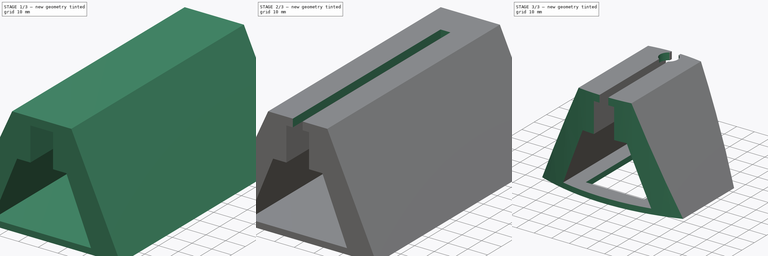
[diagram: build sequence overview — one tinted view per stage of 3, left to right]
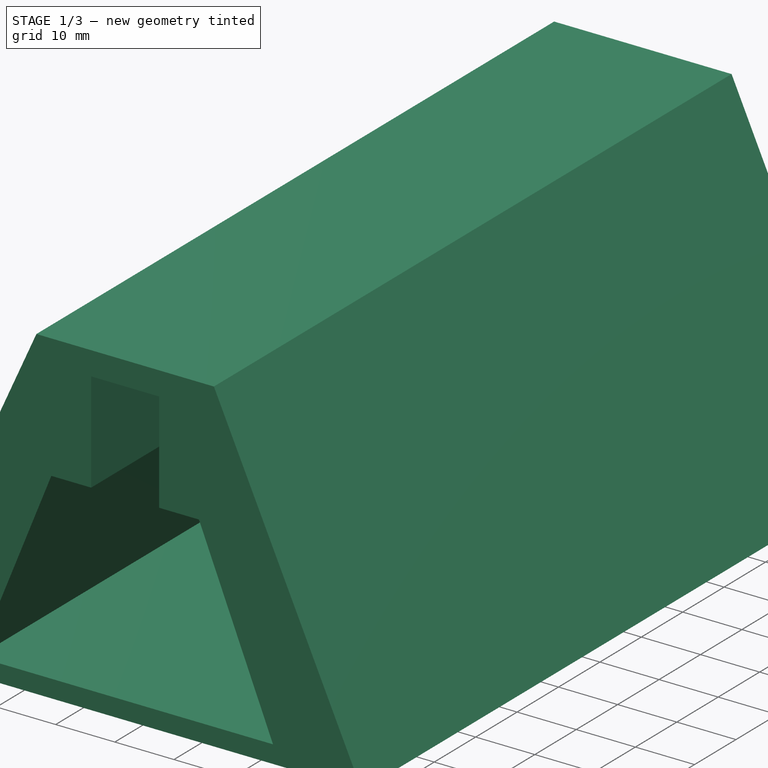
[diagram: stage 1 of 3 — iso view after this stage's code; geometry added in this stage tinted green]
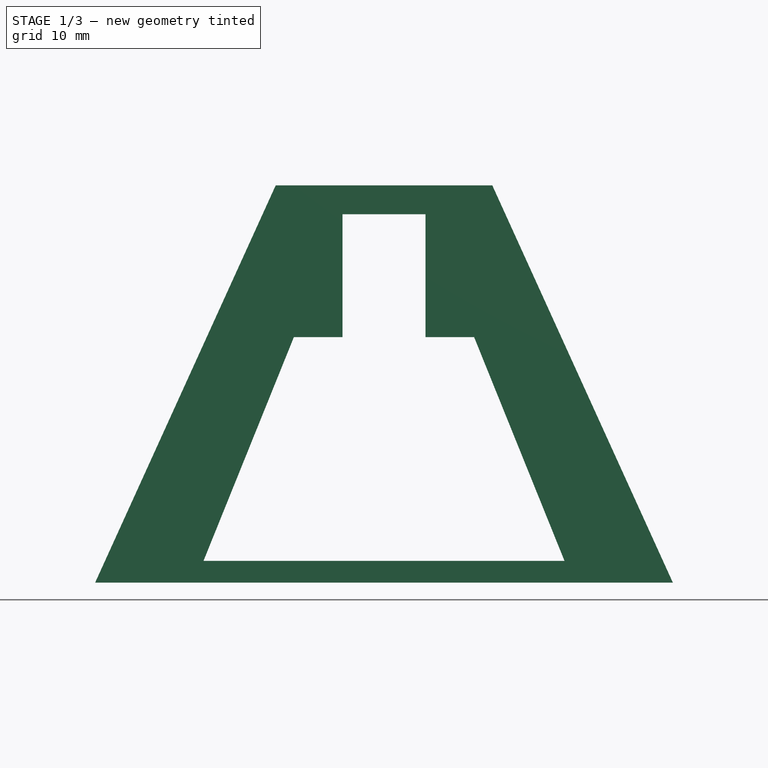
[diagram: stage 1 of 3 — front view after this stage's code; geometry added in this stage tinted green]
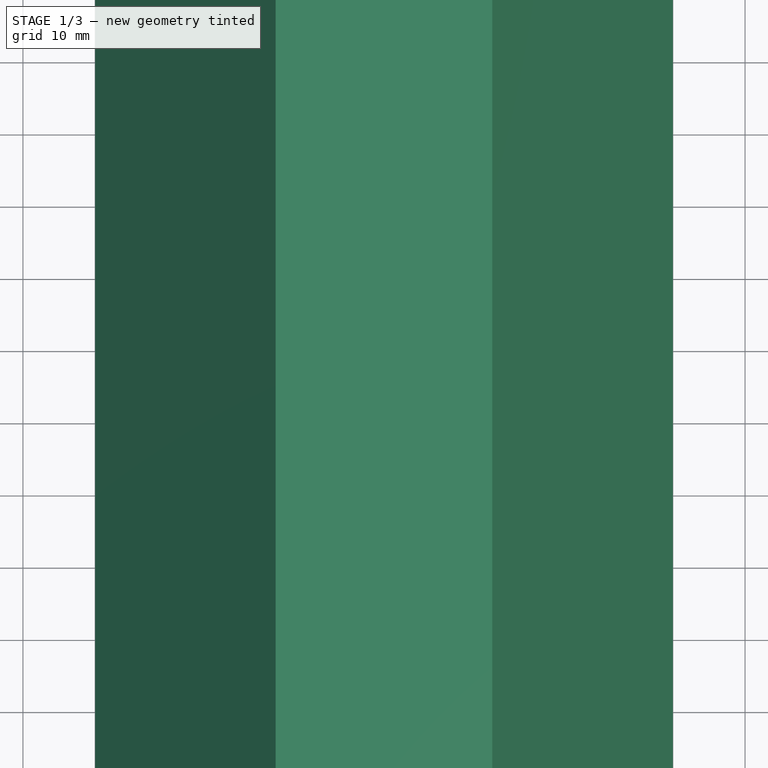
[diagram: stage 1 of 3 — top view after this stage's code; geometry added in this stage tinted green]
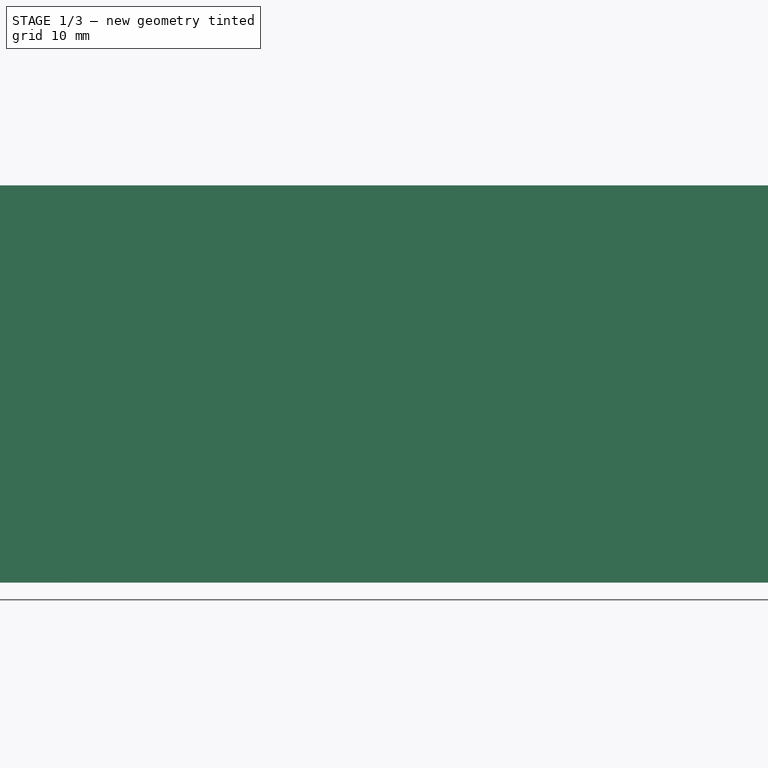
[diagram: stage 1 of 3 — right view after this stage's code; geometry added in this stage tinted green]
FCSTD DOCUMENT  (FreeCAD 0.19R)
Label: ChargerHolder2
License: All rights reserved
LicenseURL: http://en.wikipedia.org/wiki/All_rights_reserved
objects: Sketcher::SketchObject×9, PartDesign::Pocket×7, PartDesign::Pad×1, PartDesign::Body×1
note: 26 computed .brp shape members not serialized (recipe doc carries the construction recipe); baked Part::Feature solids carry a one-line shape summary decoded from their .brp

FEATURE [Sketcher::SketchObject] Sketch001
  FullyConstrained = true
  MapMode = 5
  Placement = pos=(0,-62.5,0) rot=(1,0,0;1.5708rad)
  sketch-geometry (4):
    g0: LineSegment StartX=-40 StartY=0 StartZ=0 EndX=-15 EndY=55 EndZ=0
    g1: LineSegment StartX=-15 StartY=55 StartZ=0 EndX=15 EndY=55 EndZ=0
    g2: LineSegment StartX=15 StartY=55 StartZ=0 EndX=40 EndY=0 EndZ=0
    g3: LineSegment StartX=40 StartY=0 StartZ=0 EndX=-40 EndY=0 EndZ=0
  constraints (10):
    c: PointOnObject(g0,g-1)
    c: Coincident(g0,g1)
    c: Coincident(g1,g2)
    c: Coincident(g2,g3)
    c: Coincident(g3,g0)
    c: Symmetric(g2,g0,g-2)
    c: Distance(g3) = 80
    c: Symmetric(g1,g0,g-2)
    c: Distance(g1) = 30
    c: DistanceY(g1) = 55
FEATURE [PartDesign::Pad] Pad
  Direction = (1,1,1)
  Length = 125
  Length2 = 100
  Placement = pos=(0,-62.5,0) rot=(1,0,0;1.5708rad)
  Profile = -> Sketch001
  Type = 0
FEATURE [Sketcher::SketchObject] Sketch
  FullyConstrained = false
  MapMode = 5
  Placement = pos=(0,-187.5,4.62e-14) rot=(1,0,0;1.5708rad)
  Support = -> [Pad]
  sketch-geometry (4):
    g0: LineSegment StartX=-12.4784 StartY=34 StartZ=0 EndX=12.4784 EndY=34 EndZ=0
    g1: LineSegment StartX=12.4784 StartY=34 StartZ=0 EndX=25 EndY=3 EndZ=0
    g2: LineSegment StartX=25 StartY=3 StartZ=0 EndX=-25 EndY=3 EndZ=0
    g3: LineSegment StartX=-25 StartY=3 StartZ=0 EndX=-12.4784 EndY=34 EndZ=0
  constraints (9):
    c: Coincident(g0,g1)
    c: Coincident(g1,g2)
    c: Coincident(g2,g3)
    c: Coincident(g3,g0)
    c: Symmetric(g1,g2,g-2)
    c: Symmetric(g0,g0,g-2)
    c: DistanceY(g1) = 3
    c: Distance(g2) = 50
    c: DistanceY(g1,g0) = 31
FEATURE [PartDesign::Pocket] Pocket
  BaseFeature = -> Pad
  Length = 5
  Length2 = 100
  Placement = pos=(0,-62.5,0) rot=(1,0,0;1.5708rad)
  Profile = -> Sketch
  Type = 1
FEATURE [Sketcher::SketchObject] Sketch002
  FullyConstrained = false
  MapMode = 5
  Placement = pos=(0,-187.5,6.01e-14) rot=(1,0,0;1.5708rad)
  Support = -> [Pocket]
  sketch-geometry (4):
    g0: LineSegment StartX=-5.75 StartY=51 StartZ=0 EndX=5.75 EndY=51 EndZ=0
    g1: LineSegment StartX=5.75 StartY=51 StartZ=0 EndX=5.75 EndY=26.4213 EndZ=0
    g2: LineSegment StartX=5.75 StartY=26.4213 StartZ=0 EndX=-5.75 EndY=26.4213 EndZ=0
    g3: LineSegment StartX=-5.75 StartY=26.4213 StartZ=0 EndX=-5.75 EndY=51 EndZ=0
  constraints (10):
    c: Coincident(g0,g1)
    c: Coincident(g1,g2)
    c: Coincident(g2,g3)
    c: Coincident(g3,g0)
    c: Horizontal(g0)
    c: Vertical(g1)
    c: Vertical(g3)
    c: Symmetric(g1,g2,g-2)
    c: DistanceY(g0) = 51
    c: Distance(g2) = 11.5
FEATURE [PartDesign::Pocket] Pocket001
  BaseFeature = -> Pocket
  Length = 5
  Length2 = 100
  Placement = pos=(0,-62.5,0) rot=(1,0,0;1.5708rad)
  Profile = -> Sketch002
  Type = 1
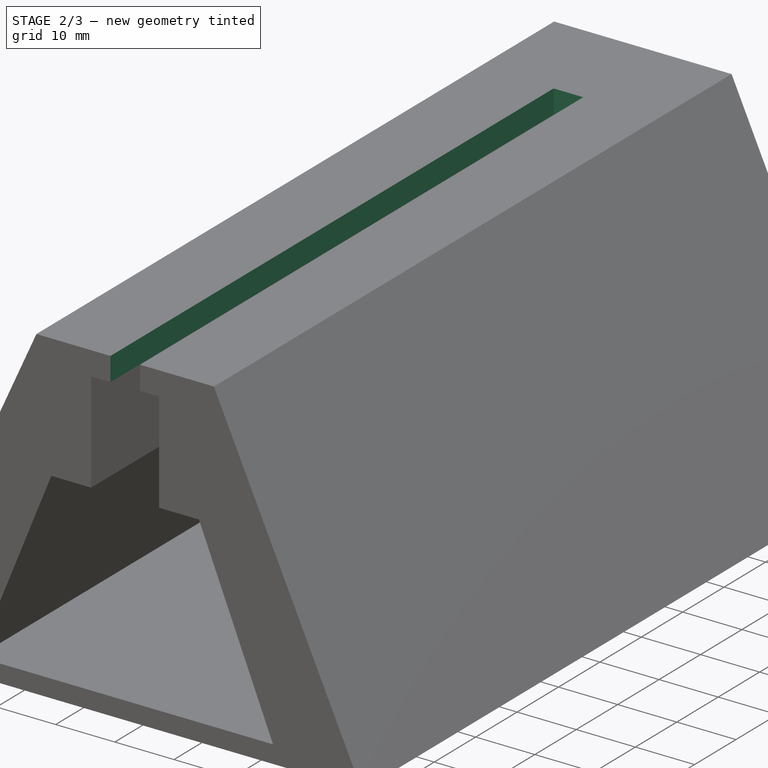
[diagram: stage 2 of 3 — iso view after this stage's code; geometry added in this stage tinted green]
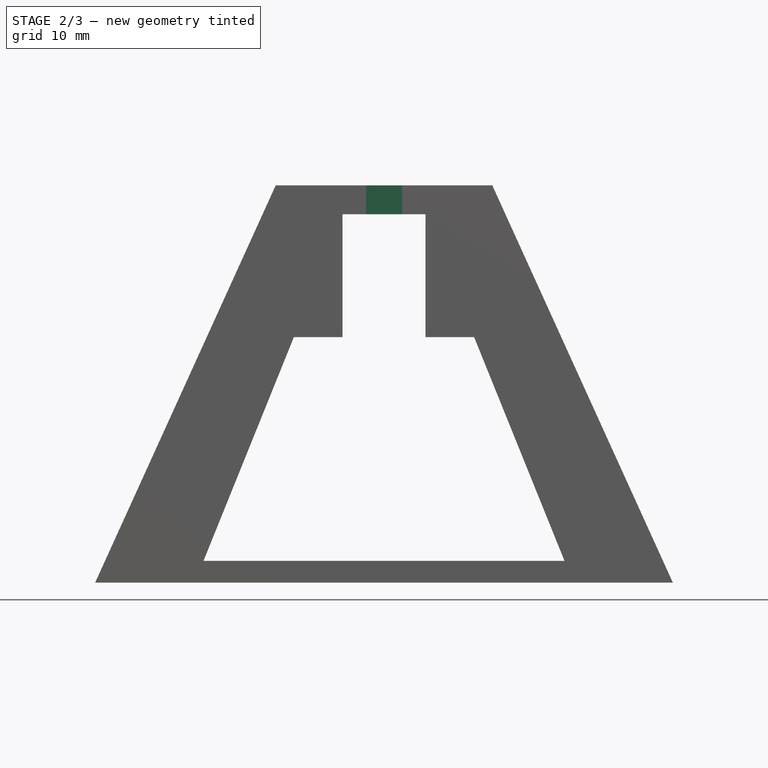
[diagram: stage 2 of 3 — front view after this stage's code; geometry added in this stage tinted green]
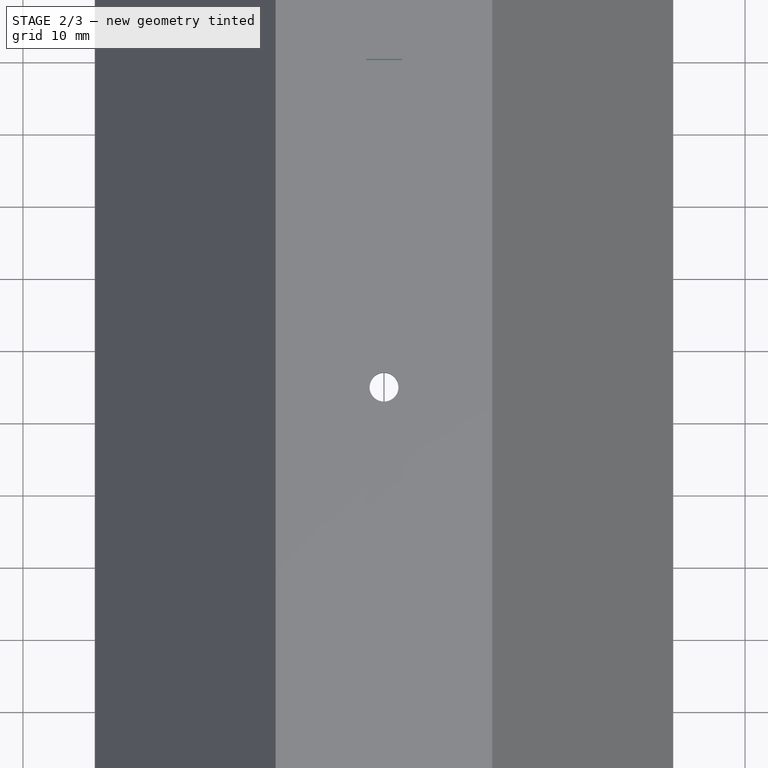
[diagram: stage 2 of 3 — top view after this stage's code; geometry added in this stage tinted green]
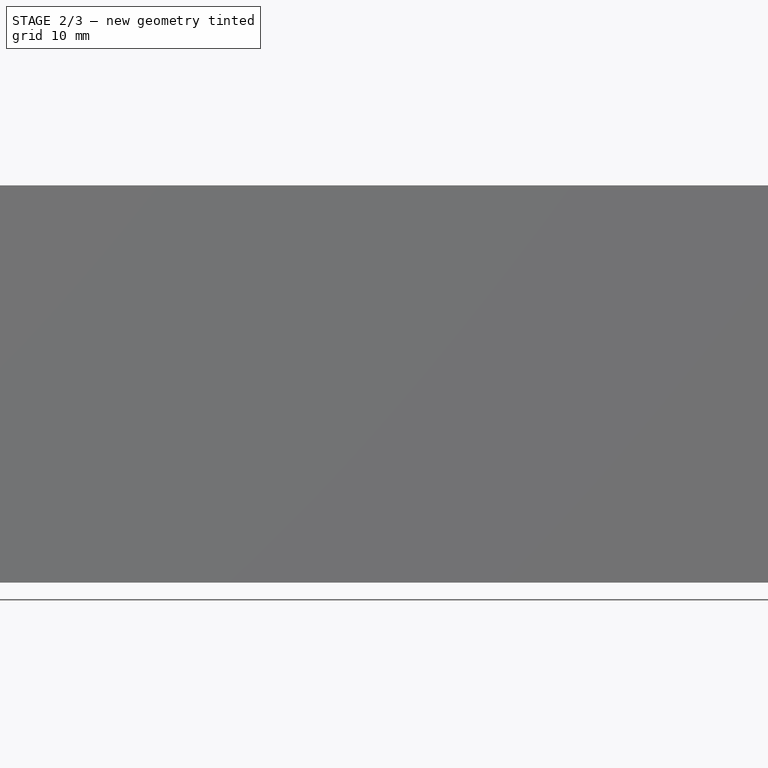
[diagram: stage 2 of 3 — right view after this stage's code; geometry added in this stage tinted green]
FEATURE [Sketcher::SketchObject] Sketch003
  FullyConstrained = false
  MapMode = 5
  Placement = pos=(0,-187.5,7.39e-14) rot=(1,0,0;1.5708rad)
  Support = -> [Pocket001]
  sketch-geometry (4):
    g0: LineSegment StartX=-2.48159 StartY=76.2642 StartZ=0 EndX=2.51841 EndY=76.2642 EndZ=0
    g1: LineSegment StartX=2.51841 StartY=76.2642 StartZ=0 EndX=2.51841 EndY=44.212 EndZ=0
    g2: LineSegment StartX=2.51841 StartY=44.212 StartZ=0 EndX=-2.48159 EndY=44.212 EndZ=0
    g3: LineSegment StartX=-2.48159 StartY=44.212 StartZ=0 EndX=-2.48159 EndY=76.2642 EndZ=0
  constraints (9):
    c: Coincident(g0,g1)
    c: Coincident(g1,g2)
    c: Coincident(g2,g3)
    c: Coincident(g3,g0)
    c: Horizontal(g0)
    c: Horizontal(g2)
    c: Vertical(g1)
    c: Vertical(g3)
    c: Distance(g0) = 5
FEATURE [PartDesign::Pocket] Pocket002
  BaseFeature = -> Pocket001
  Length = 107
  Length2 = 100
  Placement = pos=(0,-62.5,0) rot=(1,0,0;1.5708rad)
  Profile = -> Sketch003
  Type = 0
FEATURE [Sketcher::SketchObject] Sketch004
  FullyConstrained = true
  MapMode = 5
  Placement = pos=(0,-62.5,0) rot=(1,0,0;3.14159rad)
  Support = -> [Pocket002]
  sketch-geometry (1):
    g0: Circle CenterX=0 CenterY=62.5 CenterZ=0 NormalX=0 NormalY=0 NormalZ=1 AngleXU=0 Radius=2
  constraints (3):
    c: Radius(g0) = 2
    c: PointOnObject(g0,g-2)
    c: DistanceY(g0) = 62.5
FEATURE [PartDesign::Pocket] Pocket003
  BaseFeature = -> Pocket002
  Length = 5
  Length2 = 100
  Placement = pos=(0,-62.5,0) rot=(1,0,0;1.5708rad)
  Profile = -> Sketch004
  Type = 0
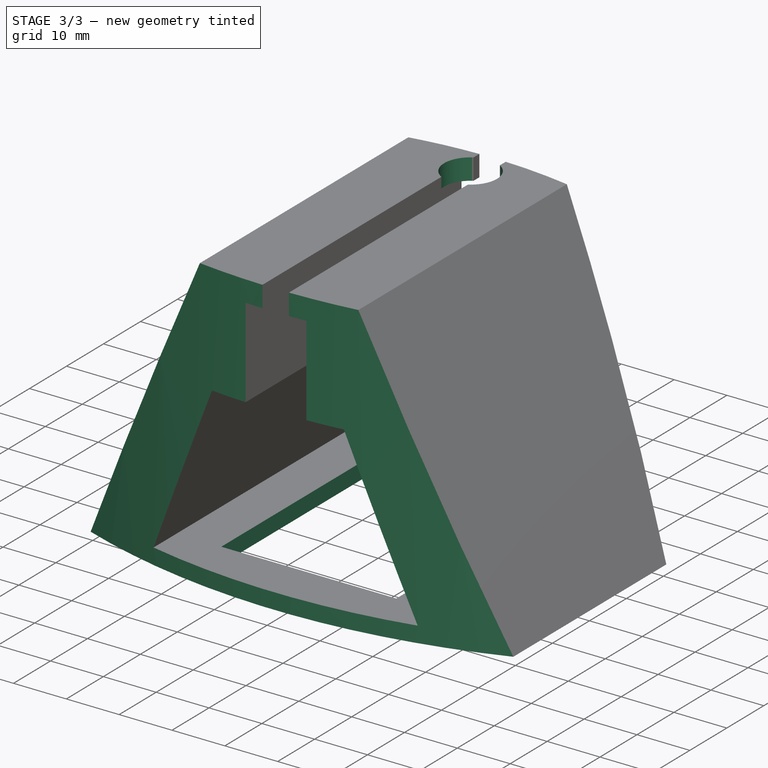
[diagram: stage 3 of 3 — iso view after this stage's code; geometry added in this stage tinted green]
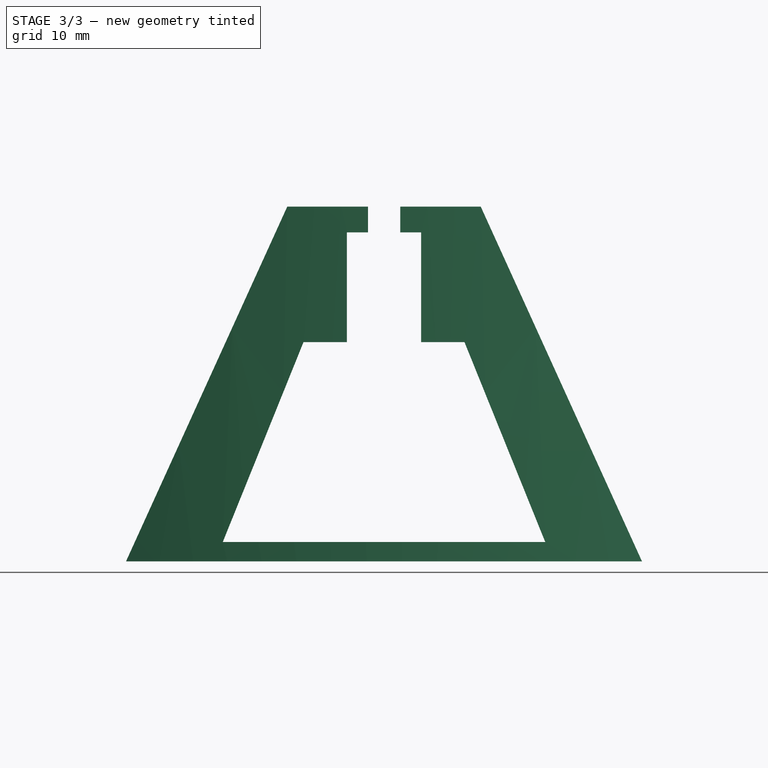
[diagram: stage 3 of 3 — front view after this stage's code; geometry added in this stage tinted green]
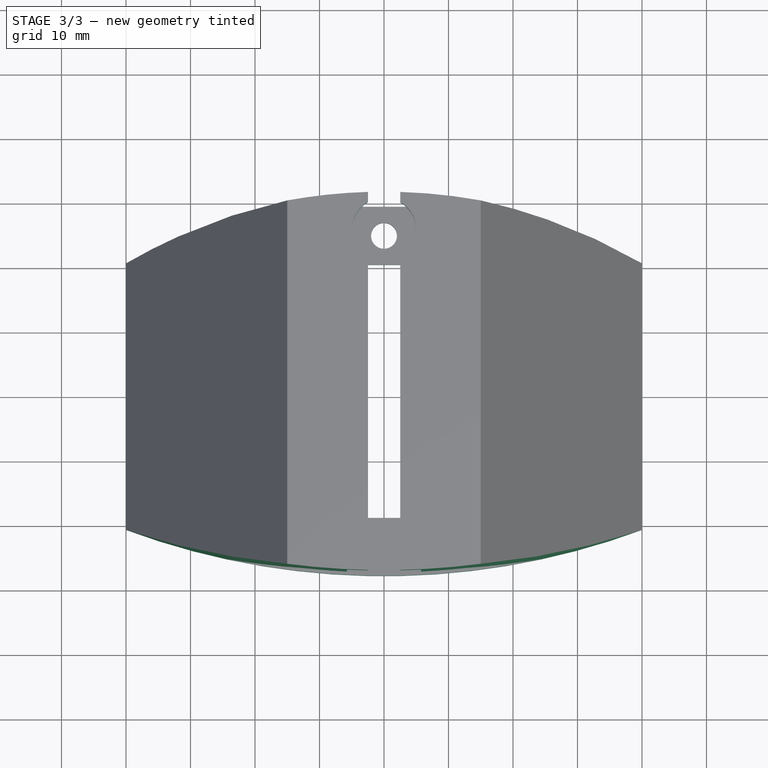
[diagram: stage 3 of 3 — top view after this stage's code; geometry added in this stage tinted green]
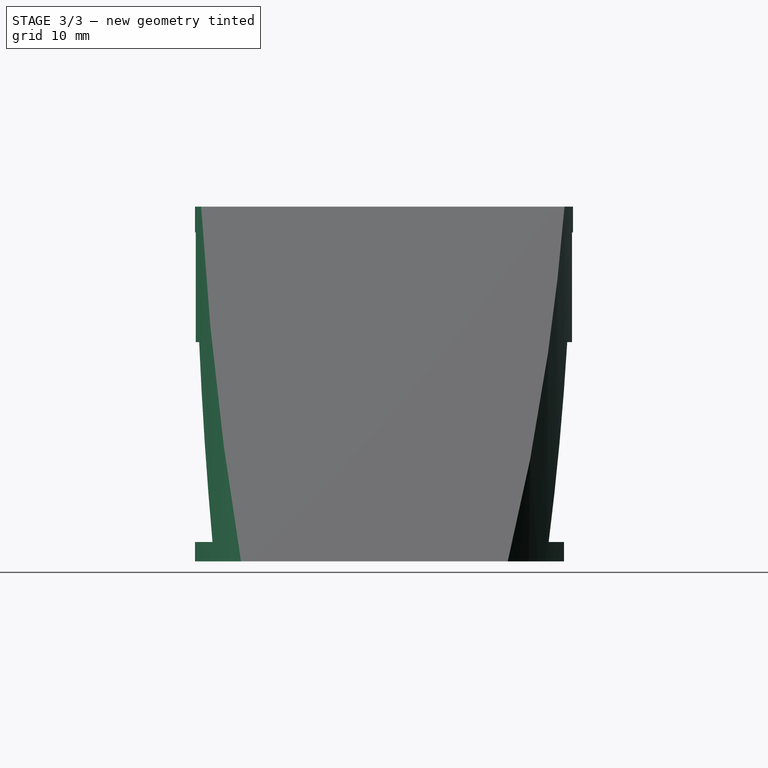
[diagram: stage 3 of 3 — right view after this stage's code; geometry added in this stage tinted green]
FEATURE [Sketcher::SketchObject] Sketch005
  ExternalGeometry = -> [Pocket003]
  FullyConstrained = true
  MapMode = 5
  Placement = pos=(0,-62.5,3) rot=(0,0,1;3.14159rad)
  Support = -> [Pocket003]
  sketch-geometry (1):
    g0: Circle CenterX=0 CenterY=62.5 CenterZ=0 NormalX=0 NormalY=0 NormalZ=1 AngleXU=0 Radius=5
  constraints (2):
    c: Diameter(g0) = 10
    c: Coincident(g0,g-3)
FEATURE [PartDesign::Pocket] Pocket004
  BaseFeature = -> Pocket003
  Length = 5
  Length2 = 100
  Placement = pos=(0,-62.5,0) rot=(1,0,0;1.5708rad)
  Profile = -> Sketch005
  Reversed = true
  Type = 1
FEATURE [Sketcher::SketchObject] Sketch006
  ExternalGeometry = -> [Pocket004]
  FullyConstrained = false
  MapMode = 5
  Placement = pos=(0,-62.5,0) rot=(1,0,0;3.14159rad)
  Support = -> [Pocket004]
  sketch-geometry (8):
    g0: LineSegment StartX=16.574 StartY=67 StartZ=0 EndX=-16.5599 EndY=67 EndZ=0
    g1: LineSegment StartX=-16.5599 StartY=67 StartZ=0 EndX=-16.5599 EndY=106.241 EndZ=0
    g2: LineSegment StartX=-16.5599 StartY=106.241 StartZ=0 EndX=16.574 EndY=106.241 EndZ=0
    g3: LineSegment StartX=16.574 StartY=106.241 StartZ=0 EndX=16.574 EndY=67 EndZ=0
    g4: LineSegment StartX=16.5599 StartY=58 StartZ=0 EndX=-16.574 EndY=58 EndZ=0
    g5: LineSegment StartX=-16.574 StartY=58 StartZ=0 EndX=-16.574 EndY=18.7587 EndZ=0
    g6: LineSegment StartX=-16.574 StartY=18.7587 StartZ=0 EndX=16.5599 EndY=18.7587 EndZ=0
    g7: LineSegment StartX=16.5599 StartY=18.7587 StartZ=0 EndX=16.5599 EndY=58 EndZ=0
  constraints (20):
    c: Coincident(g0,g1)
    c: Vertical(g1)
    c: Coincident(g1,g2)
    c: Horizontal(g2)
    c: Coincident(g2,g3)
    c: Coincident(g3,g0)
    c: Coincident(g6,g7)
    c: Coincident(g7,g4)
    c: Equal(g6,g2)
    c: Equal(g3,g7)
    c: Symmetric(g4,g0,g-3)
    c: Parallel(g4,g0)
    c: Horizontal(g4)
    c: Distance(g4,g0) = 9
    c: Equal(g4,g0)
    c: Equal(g0,g6)
    c: Horizontal(g6)
    c: Coincident(g4,g5)
    c: Coincident(g6,g5)
    c: Parallel(g1,g5)
FEATURE [PartDesign::Pocket] Pocket005
  BaseFeature = -> Pocket004
  Length = 5
  Length2 = 100
  Placement = pos=(0,-62.5,0) rot=(1,0,0;1.5708rad)
  Profile = -> Sketch006
  Type = 0
FEATURE [Sketcher::SketchObject] Sketch007
  FullyConstrained = false
  MapMode = 5
  Placement = pos=(0,-62.5,0) rot=(1,0,0;3.14159rad)
  Support = -> [Pocket005]
  sketch-geometry (11):
    g0: ArcOfCircle CenterX=0 CenterY=0 CenterZ=0 NormalX=0 NormalY=0 NormalZ=1 AngleXU=0 Radius=115.243 StartAngle=1.04674 EndAngle=2.08575
    g1: ArcOfCircle CenterX=0 CenterY=140.398 CenterZ=0 NormalX=0 NormalY=0 NormalZ=1 AngleXU=0 Radius=83.8368 StartAngle=4.09718 EndAngle=5.37102
    g2: LineSegment StartX=51.3109 StartY=74.0969 StartZ=0 EndX=53.5231 EndY=75.809 EndZ=0
    g3: LineSegment StartX=53.5231 StartY=75.809 StartZ=0 EndX=72.6082 EndY=-29.3465 EndZ=0
    g4: LineSegment StartX=72.6082 StartY=-29.3465 StartZ=0 EndX=-27.6613 EndY=-61.2241 EndZ=0
    g5: LineSegment StartX=-27.6613 StartY=-61.2241 StartZ=0 EndX=-105.616 EndY=40.2046 EndZ=0
    g6: LineSegment StartX=-105.616 StartY=40.2046 StartZ=0 EndX=-48.3844 EndY=71.932 EndZ=0
    g7: LineSegment StartX=57.6667 StartY=99.7772 StartZ=0 EndX=65.9167 EndY=95.0091 EndZ=0
    g8: LineSegment StartX=65.9167 StartY=95.0091 StartZ=0 EndX=80.7225 EndY=130.041 EndZ=0
    g9: LineSegment StartX=80.7225 StartY=130.041 StartZ=0 EndX=-66.494 EndY=135.548 EndZ=0
    g10: LineSegment StartX=-66.494 StartY=135.548 StartZ=0 EndX=-56.7568 EndY=100.298 EndZ=0
  constraints (13):
    c: Coincident(g0,g-1)
    c: PointOnObject(g1,g-2)
    c: Tangent(g1,g2) = -1.5708
    c: Coincident(g2,g3)
    c: Coincident(g3,g4)
    c: Coincident(g4,g5)
    c: Coincident(g5,g6)
    c: Coincident(g6,g1)
    c: Tangent(g0,g7) = 1.5708
    c: Coincident(g7,g8)
    c: Coincident(g8,g9)
    c: Coincident(g9,g10)
    c: Coincident(g10,g0)
FEATURE [PartDesign::Pocket] Pocket006
  BaseFeature = -> Pocket005
  Length = 31
  Length2 = 100
  Placement = pos=(0,-62.5,0) rot=(1,0,0;1.5708rad)
  Profile = -> Sketch007
  Type = 1
FEATURE [Sketcher::SketchObject] Sketch008
  FullyConstrained = false
  MapMode = 5
  Placement = pos=(-33.1507,-62.5,15.0685) rot=(-0.541386,0,0.840774;3.14159rad)
  Support = -> [Pocket006]
  sketch-geometry (9):
    g0: ArcOfCircle CenterX=0 CenterY=16.3026 CenterZ=0 NormalX=0 NormalY=0 NormalZ=1 AngleXU=0 Radius=100.042 StartAngle=1.59742 EndAngle=2.30871
    g1: ArcOfCircle CenterX=0 CenterY=152.344 CenterZ=0 NormalX=0 NormalY=0 NormalZ=1 AngleXU=0 Radius=96.4133 StartAngle=3.97666 EndAngle=5.10062
    g2: LineSegment StartX=36.497 StartY=63.1058 StartZ=0 EndX=41.0162 EndY=64.954 EndZ=0
    g3: LineSegment StartX=41.0162 StartY=64.954 StartZ=0 EndX=36.0165 EndY=31.9124 EndZ=0
    g4: LineSegment StartX=36.0165 StartY=31.9124 StartZ=0 EndX=-81.3143 EndY=31.9124 EndZ=0
    g5: LineSegment StartX=-81.3143 StartY=31.9124 StartZ=0 EndX=-64.7054 EndY=80.8687 EndZ=0
    g6: LineSegment StartX=-67.3033 StartY=90.3211 StartZ=0 EndX=-79.7602 EndY=133.897 EndZ=0
    g7: LineSegment StartX=-79.7602 StartY=133.897 StartZ=0 EndX=-4.7773 EndY=156.625 EndZ=0
    g8: LineSegment StartX=-4.7773 StartY=156.625 StartZ=0 EndX=-2.66308 EndY=116.31 EndZ=0
  constraints (12):
    c: PointOnObject(g0,g-2)
    c: PointOnObject(g1,g-2)
    c: Tangent(g1,g2) = -1.5708
    c: Coincident(g2,g3)
    c: Coincident(g3,g4)
    c: Horizontal(g4)
    c: Coincident(g4,g5)
    c: Coincident(g5,g1)
    c: Coincident(g0,g6)
    c: Coincident(g6,g7)
    c: Coincident(g7,g8)
    c: Coincident(g8,g0)
FEATURE [PartDesign::Body] Body
  Group = -> [Sketch001,Pad,Sketch,Pocket,Sketch002,Pocket001,Sketch003,Pocket002,Sketch004,Pocket003,Sketch005,Pocket004,Sketch006,Pocket005,Sketch007,Pocket006,Sketch008]
  Origin = -> Origin
  Tip = -> Pocket006
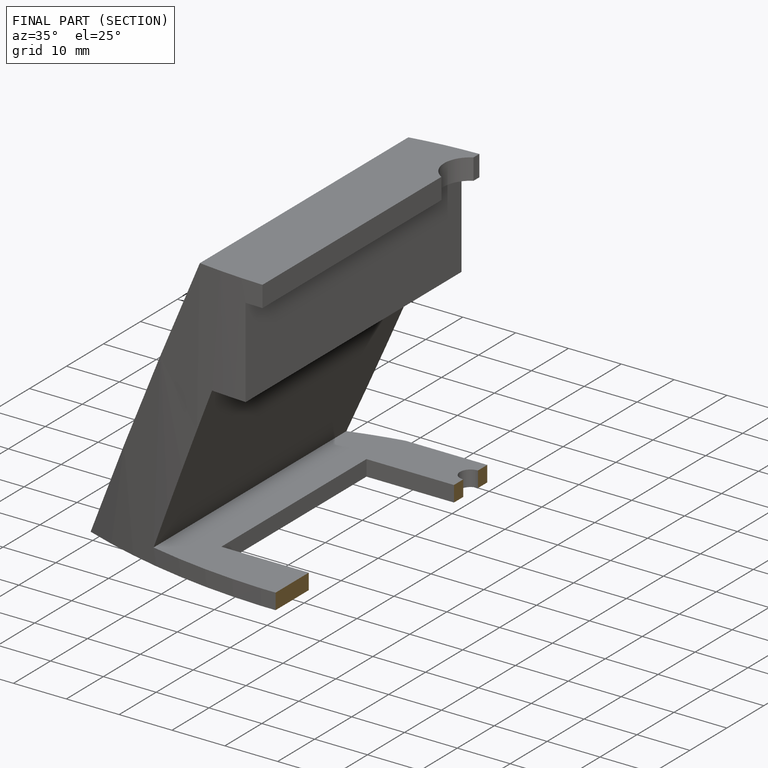
[diagram: finished part — half-section view (interior)]
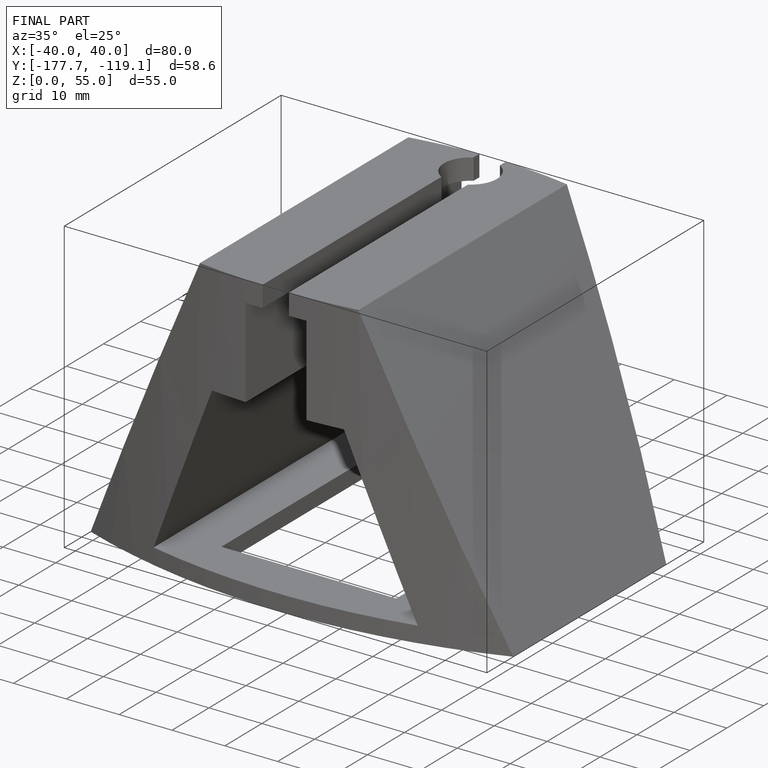
[diagram: finished part — iso view with bounding-box wireframe]
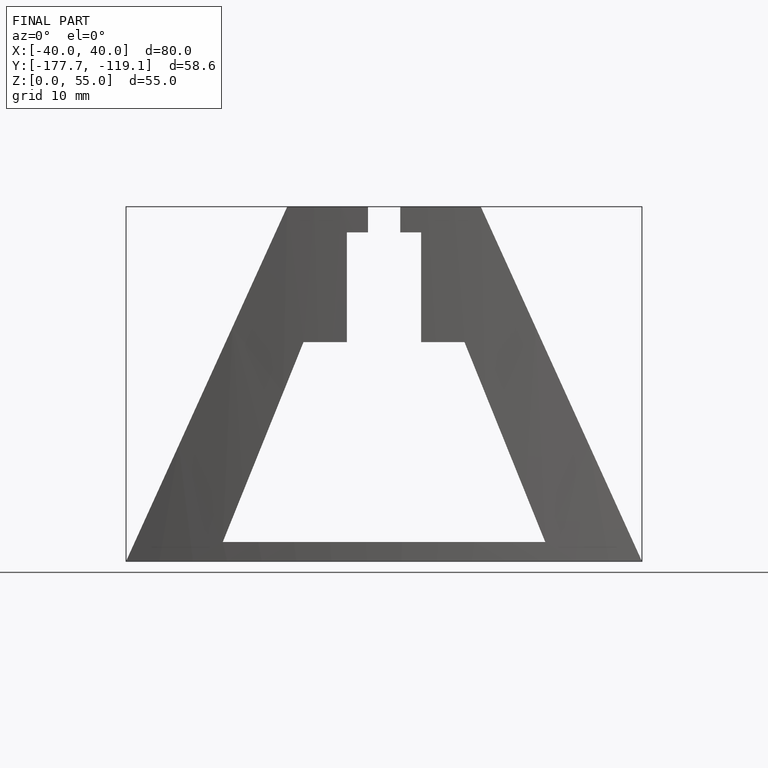
[diagram: finished part — front view with bounding-box wireframe]
